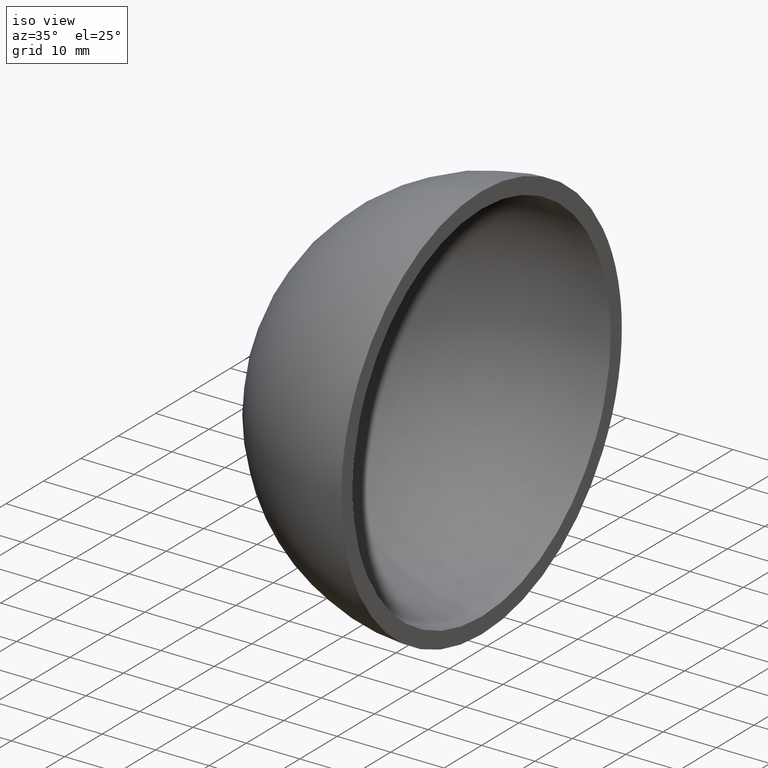
[diagram: clean part render]
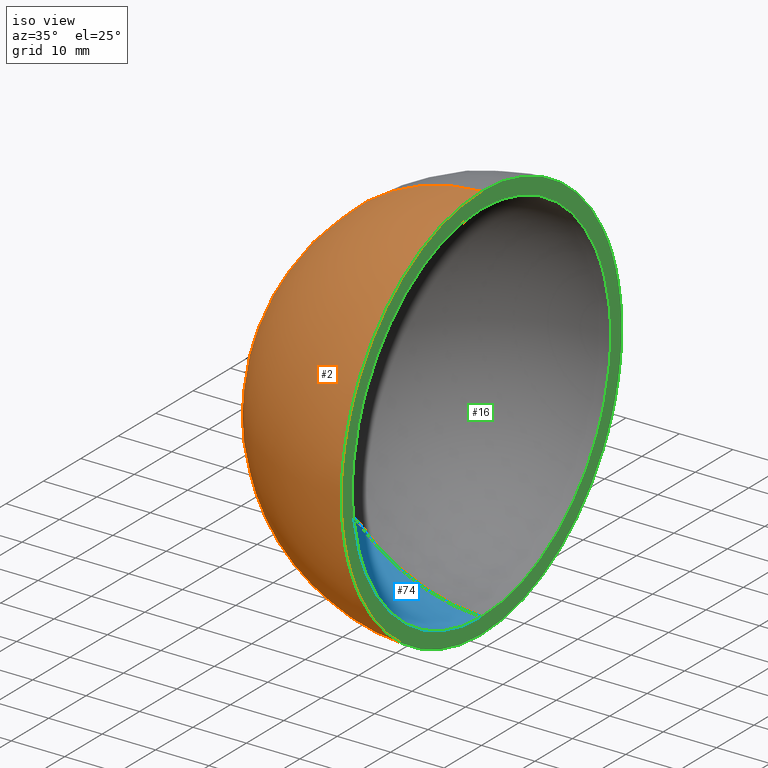
[diagram: same view with three faces highlighted in distinct colors, each labeled with its STEP entity id]
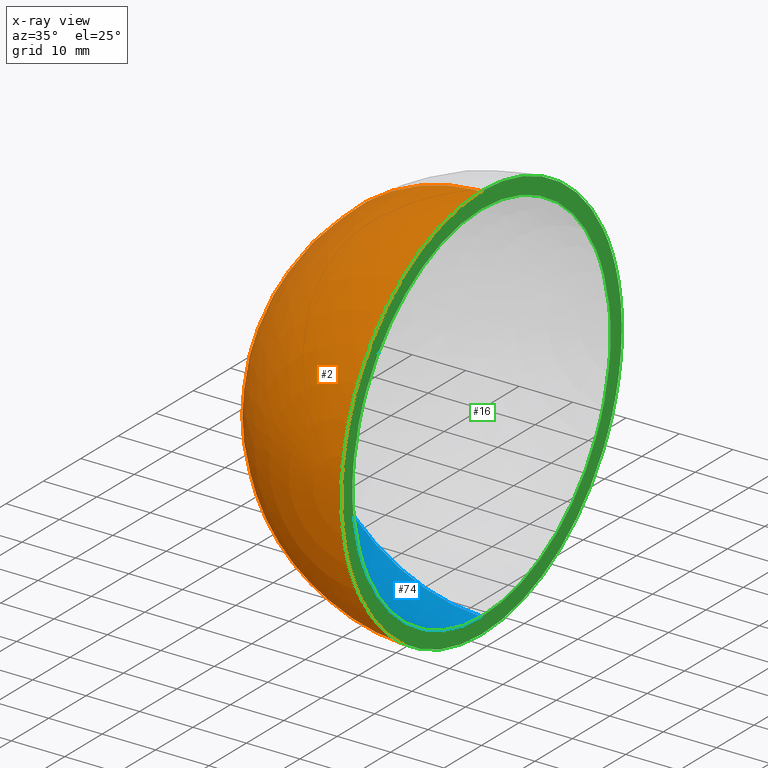
[diagram: x-ray of the same camera — body ghosted, the three highlighted faces saturated]
A machine part, iso view with three faces highlighted in distinct colors.
The next image is the same camera in x-ray (body ghosted, the three faces saturated) — at least one of them is partly hidden behind the body in this view.
Their STEP definitions:

[orange] entity #2 — the highlighted spherical surface has radius 37.5 mm.
#2 = ADVANCED_FACE ( 'NONE', ( #104 ), #143, .T. ) ;
#4 = AXIS2_PLACEMENT_3D ( 'NONE', #68, #30, #21 ) ;
#11 = EDGE_CURVE ( 'NONE', #94, #35, #33, .T. ) ;
#21 = DIRECTION ( 'NONE',  ( 0.0000000000000000000, -1.224646799147353200E-016, -1.000000000000000000 ) ) ;
#22 = EDGE_CURVE ( 'NONE', #35, #97, #39, .T. ) ;
#24 = ORIENTED_EDGE ( 'NONE', *, *, #22, .F. ) ;
#25 = CARTESIAN_POINT ( 'NONE',  ( -37.50000000000000000, 0.0000000000000000000, 2.296212748401287200E-015 ) ) ;
#30 = DIRECTION ( 'NONE',  ( 0.0000000000000000000, -1.000000000000000000, 1.224646799147353200E-016 ) ) ;
#33 = CIRCLE ( 'NONE', #43, 37.50000000000000000 ) ;
#35 = VERTEX_POINT ( 'NONE', #95 ) ;
#36 = EDGE_CURVE ( 'NONE', #94, #97, #142, .T. ) ;
#38 = CARTESIAN_POINT ( 'NONE',  ( -0.9999999999999940000, 0.0000000000000000000, 0.0000000000000000000 ) ) ;
#39 = CIRCLE ( 'NONE', #103, 37.48666429545312400 ) ;
#43 = AXIS2_PLACEMENT_3D ( 'NONE', #164, #79, #141 ) ;
#56 = DIRECTION ( 'NONE',  ( 1.000000000000000000, -0.0000000000000000000, -0.0000000000000000000 ) ) ;
#67 = ORIENTED_EDGE ( 'NONE', *, *, #36, .T. ) ;
#68 = CARTESIAN_POINT ( 'NONE',  ( 0.0000000000000000000, 0.0000000000000000000, 0.0000000000000000000 ) ) ;
#79 = DIRECTION ( 'NONE',  ( 0.0000000000000000000, 1.000000000000000000, 0.0000000000000000000 ) ) ;
#84 = DIRECTION ( 'NONE',  ( 0.0000000000000000000, -1.000000000000000000, 0.0000000000000000000 ) ) ;
#91 = DIRECTION ( 'NONE',  ( 0.0000000000000000000, 0.0000000000000000000, 1.000000000000000000 ) ) ;
#94 = VERTEX_POINT ( 'NONE', #25 ) ;
#95 = CARTESIAN_POINT ( 'NONE',  ( -0.9999999999999940000, 0.0000000000000000000, 37.48666429545312400 ) ) ;
#97 = VERTEX_POINT ( 'NONE', #150 ) ;
#102 = CARTESIAN_POINT ( 'NONE',  ( 0.0000000000000000000, 0.0000000000000000000, 0.0000000000000000000 ) ) ;
#103 = AXIS2_PLACEMENT_3D ( 'NONE', #38, #56, #134 ) ;
#104 = FACE_OUTER_BOUND ( 'NONE', #133, .T. ) ;
#124 = AXIS2_PLACEMENT_3D ( 'NONE', #102, #84, #91 ) ;
#133 = EDGE_LOOP ( 'NONE', ( #156, #67, #24 ) ) ;
#134 = DIRECTION ( 'NONE',  ( 0.0000000000000000000, 0.0000000000000000000, -1.000000000000000000 ) ) ;
#141 = DIRECTION ( 'NONE',  ( 0.0000000000000000000, 0.0000000000000000000, 1.000000000000000000 ) ) ;
#142 = CIRCLE ( 'NONE', #4, 37.50000000000000000 ) ;
#143 = SPHERICAL_SURFACE ( 'NONE', #124, 37.50000000000000000 ) ;
#150 = CARTESIAN_POINT ( 'NONE',  ( -0.9999999999999940000, -4.590792344013803300E-015, -37.48666429545312400 ) ) ;
#156 = ORIENTED_EDGE ( 'NONE', *, *, #11, .F. ) ;
#164 = CARTESIAN_POINT ( 'NONE',  ( 0.0000000000000000000, 0.0000000000000000000, 0.0000000000000000000 ) ) ;

[blue] entity #74 — the highlighted spherical surface has radius 34.5 mm.
#6 = DIRECTION ( 'NONE',  ( 0.0000000000000000000, -1.000000000000000000, 1.224646799147353200E-016 ) ) ;
#8 = CARTESIAN_POINT ( 'NONE',  ( 0.0000000000000000000, 0.0000000000000000000, 0.0000000000000000000 ) ) ;
#15 = AXIS2_PLACEMENT_3D ( 'NONE', #114, #90, #163 ) ;
#20 = DIRECTION ( 'NONE',  ( 0.0000000000000000000, -1.224646799147353200E-016, -1.000000000000000000 ) ) ;
#27 = ORIENTED_EDGE ( 'NONE', *, *, #145, .F. ) ;
#29 = VERTEX_POINT ( 'NONE', #121 ) ;
#40 = EDGE_CURVE ( 'NONE', #29, #120, #137, .T. ) ;
#47 = FACE_OUTER_BOUND ( 'NONE', #159, .T. ) ;
#52 = DIRECTION ( 'NONE',  ( 0.0000000000000000000, 0.0000000000000000000, 1.000000000000000000 ) ) ;
#54 = CIRCLE ( 'NONE', #15, 34.48550420104076200 ) ;
#55 = VERTEX_POINT ( 'NONE', #157 ) ;
#69 = ORIENTED_EDGE ( 'NONE', *, *, #89, .T. ) ;
#74 = ADVANCED_FACE ( 'NONE', ( #47 ), #87, .F. ) ;
#76 = DIRECTION ( 'NONE',  ( 0.0000000000000000000, 1.000000000000000000, 0.0000000000000000000 ) ) ;
#85 = DIRECTION ( 'NONE',  ( 0.0000000000000000000, -1.000000000000000000, 0.0000000000000000000 ) ) ;
#87 = SPHERICAL_SURFACE ( 'NONE', #96, 34.49999999999999300 ) ;
#89 = EDGE_CURVE ( 'NONE', #120, #55, #54, .T. ) ;
#90 = DIRECTION ( 'NONE',  ( 1.000000000000000000, -0.0000000000000000000, -0.0000000000000000000 ) ) ;
#96 = AXIS2_PLACEMENT_3D ( 'NONE', #166, #85, #118 ) ;
#114 = CARTESIAN_POINT ( 'NONE',  ( -0.9999999999999945600, 0.0000000000000000000, 0.0000000000000000000 ) ) ;
#116 = AXIS2_PLACEMENT_3D ( 'NONE', #144, #76, #52 ) ;
#118 = DIRECTION ( 'NONE',  ( 0.0000000000000000000, 0.0000000000000000000, 1.000000000000000000 ) ) ;
#120 = VERTEX_POINT ( 'NONE', #168 ) ;
#121 = CARTESIAN_POINT ( 'NONE',  ( -34.49999999999999300, 0.0000000000000000000, 2.112515728529183700E-015 ) ) ;
#135 = AXIS2_PLACEMENT_3D ( 'NONE', #8, #6, #20 ) ;
#137 = CIRCLE ( 'NONE', #116, 34.49999999999999300 ) ;
#144 = CARTESIAN_POINT ( 'NONE',  ( 0.0000000000000000000, 0.0000000000000000000, 0.0000000000000000000 ) ) ;
#145 = EDGE_CURVE ( 'NONE', #29, #55, #146, .T. ) ;
#146 = CIRCLE ( 'NONE', #135, 34.49999999999999300 ) ;
#157 = CARTESIAN_POINT ( 'NONE',  ( -0.9999999999999945600, -4.223256233678716200E-015, -34.48550420104076200 ) ) ;
#159 = EDGE_LOOP ( 'NONE', ( #27, #167, #69 ) ) ;
#163 = DIRECTION ( 'NONE',  ( 0.0000000000000000000, 0.0000000000000000000, -1.000000000000000000 ) ) ;
#166 = CARTESIAN_POINT ( 'NONE',  ( 0.0000000000000000000, 0.0000000000000000000, 0.0000000000000000000 ) ) ;
#167 = ORIENTED_EDGE ( 'NONE', *, *, #40, .T. ) ;
#168 = CARTESIAN_POINT ( 'NONE',  ( -0.9999999999999945600, 0.0000000000000000000, 34.48550420104076200 ) ) ;

[green] entity #16 — the highlighted planar face has unit normal (-1, 0, 0).
#7 = CIRCLE ( 'NONE', #42, 37.48666429545312400 ) ;
#10 = DIRECTION ( 'NONE',  ( -1.000000000000000000, 0.0000000000000000000, 0.0000000000000000000 ) ) ;
#14 = ORIENTED_EDGE ( 'NONE', *, *, #65, .T. ) ;
#15 = AXIS2_PLACEMENT_3D ( 'NONE', #114, #90, #163 ) ;
#16 = ADVANCED_FACE ( 'NONE', ( #109, #72 ), #93, .F. ) ;
#22 = EDGE_CURVE ( 'NONE', #35, #97, #39, .T. ) ;
#35 = VERTEX_POINT ( 'NONE', #95 ) ;
#37 = DIRECTION ( 'NONE',  ( 0.0000000000000000000, 0.0000000000000000000, -1.000000000000000000 ) ) ;
#38 = CARTESIAN_POINT ( 'NONE',  ( -0.9999999999999940000, 0.0000000000000000000, 0.0000000000000000000 ) ) ;
#39 = CIRCLE ( 'NONE', #103, 37.48666429545312400 ) ;
#42 = AXIS2_PLACEMENT_3D ( 'NONE', #51, #53, #117 ) ;
#51 = CARTESIAN_POINT ( 'NONE',  ( -0.9999999999999940000, 0.0000000000000000000, 0.0000000000000000000 ) ) ;
#53 = DIRECTION ( 'NONE',  ( 1.000000000000000000, -0.0000000000000000000, -0.0000000000000000000 ) ) ;
#54 = CIRCLE ( 'NONE', #15, 34.48550420104076200 ) ;
#55 = VERTEX_POINT ( 'NONE', #157 ) ;
#56 = DIRECTION ( 'NONE',  ( 1.000000000000000000, -0.0000000000000000000, -0.0000000000000000000 ) ) ;
#58 = CIRCLE ( 'NONE', #66, 34.48550420104076200 ) ;
#65 = EDGE_CURVE ( 'NONE', #97, #35, #7, .T. ) ;
#66 = AXIS2_PLACEMENT_3D ( 'NONE', #139, #106, #37 ) ;
#70 = ORIENTED_EDGE ( 'NONE', *, *, #171, .F. ) ;
#71 = AXIS2_PLACEMENT_3D ( 'NONE', #138, #10, #108 ) ;
#72 = FACE_OUTER_BOUND ( 'NONE', #127, .T. ) ;
#89 = EDGE_CURVE ( 'NONE', #120, #55, #54, .T. ) ;
#90 = DIRECTION ( 'NONE',  ( 1.000000000000000000, -0.0000000000000000000, -0.0000000000000000000 ) ) ;
#93 = PLANE ( 'NONE',  #71 ) ;
#95 = CARTESIAN_POINT ( 'NONE',  ( -0.9999999999999940000, 0.0000000000000000000, 37.48666429545312400 ) ) ;
#97 = VERTEX_POINT ( 'NONE', #150 ) ;
#103 = AXIS2_PLACEMENT_3D ( 'NONE', #38, #56, #134 ) ;
#106 = DIRECTION ( 'NONE',  ( 1.000000000000000000, -0.0000000000000000000, -0.0000000000000000000 ) ) ;
#108 = DIRECTION ( 'NONE',  ( 0.0000000000000000000, 0.0000000000000000000, 1.000000000000000000 ) ) ;
#109 = FACE_BOUND ( 'NONE', #153, .T. ) ;
#111 = ORIENTED_EDGE ( 'NONE', *, *, #22, .T. ) ;
#114 = CARTESIAN_POINT ( 'NONE',  ( -0.9999999999999945600, 0.0000000000000000000, 0.0000000000000000000 ) ) ;
#117 = DIRECTION ( 'NONE',  ( 0.0000000000000000000, 0.0000000000000000000, -1.000000000000000000 ) ) ;
#120 = VERTEX_POINT ( 'NONE', #168 ) ;
#123 = ORIENTED_EDGE ( 'NONE', *, *, #89, .F. ) ;
#127 = EDGE_LOOP ( 'NONE', ( #111, #14 ) ) ;
#134 = DIRECTION ( 'NONE',  ( 0.0000000000000000000, 0.0000000000000000000, -1.000000000000000000 ) ) ;
#138 = CARTESIAN_POINT ( 'NONE',  ( -0.9999999999999943400, 0.0000000000000000000, 34.48550420104076200 ) ) ;
#139 = CARTESIAN_POINT ( 'NONE',  ( -0.9999999999999945600, 0.0000000000000000000, 0.0000000000000000000 ) ) ;
#150 = CARTESIAN_POINT ( 'NONE',  ( -0.9999999999999940000, -4.590792344013803300E-015, -37.48666429545312400 ) ) ;
#153 = EDGE_LOOP ( 'NONE', ( #123, #70 ) ) ;
#157 = CARTESIAN_POINT ( 'NONE',  ( -0.9999999999999945600, -4.223256233678716200E-015, -34.48550420104076200 ) ) ;
#163 = DIRECTION ( 'NONE',  ( 0.0000000000000000000, 0.0000000000000000000, -1.000000000000000000 ) ) ;
#168 = CARTESIAN_POINT ( 'NONE',  ( -0.9999999999999945600, 0.0000000000000000000, 34.48550420104076200 ) ) ;
#171 = EDGE_CURVE ( 'NONE', #55, #120, #58, .T. ) ;